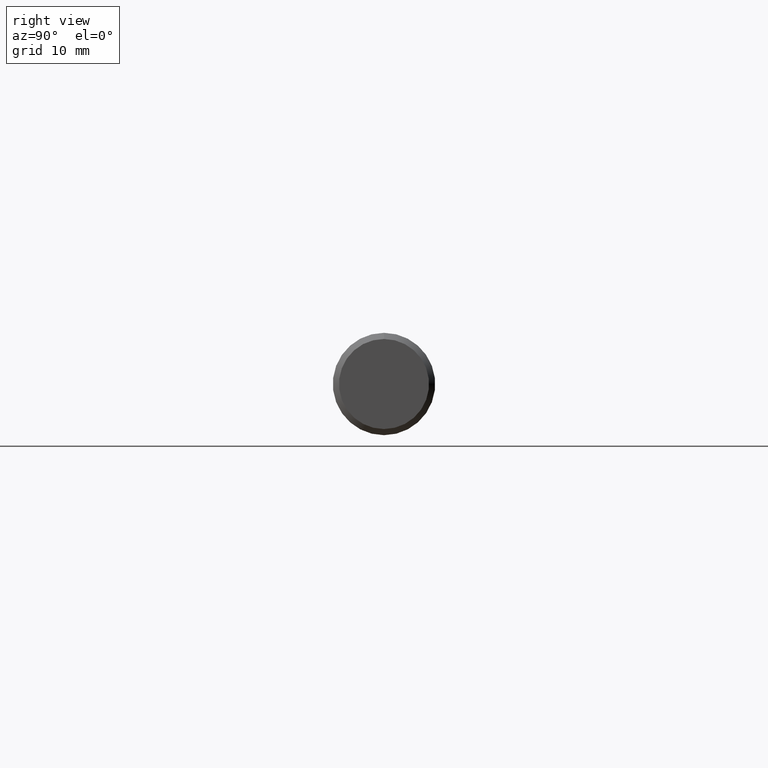
[diagram: clean part render]
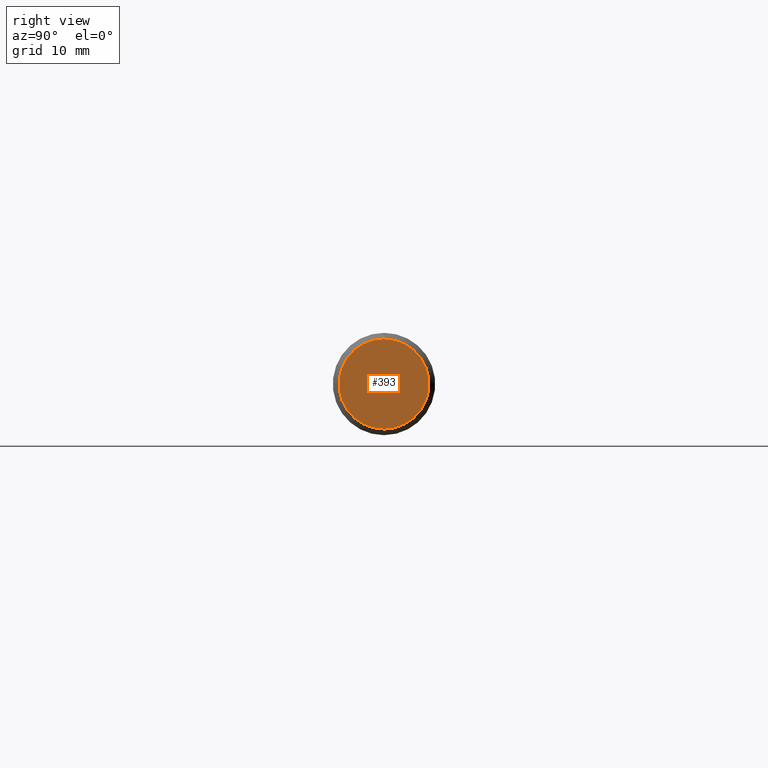
[diagram: same view with one face highlighted and labeled with its STEP entity id]
A machine part, right view. The second image highlights one B-rep face of the part: STEP entity #393.
In plain terms, the highlighted planar face has unit normal (1, 0, 0).
Its self-contained STEP definition (entity closure, byte-faithful):
#2 = EDGE_CURVE ( 'NONE', #816, #46, #442, .T. ) ;
#3 = DIRECTION ( 'NONE',  ( 1.000000000000000000, 0.0000000000000000000, 0.0000000000000000000 ) ) ;
#15 = PLANE ( 'NONE',  #2709 ) ;
#46 = VERTEX_POINT ( 'NONE', #2469 ) ;
#194 = CARTESIAN_POINT ( 'NONE',  ( 2.524999999999999911, 0.0000000000000000000, 0.0000000000000000000 ) ) ;
#393 = ADVANCED_FACE ( 'NONE', ( #810 ), #15, .T. ) ;
#442 = CIRCLE ( 'NONE', #1598, 0.2198500000000003785 ) ;
#449 = DIRECTION ( 'NONE',  ( 1.000000000000000000, 0.0000000000000000000, 0.0000000000000000000 ) ) ;
#474 = ORIENTED_EDGE ( 'NONE', *, *, #675, .T. ) ;
#601 = CIRCLE ( 'NONE', #2241, 0.2198500000000003785 ) ;
#675 = EDGE_CURVE ( 'NONE', #46, #816, #601, .T. ) ;
#798 = DIRECTION ( 'NONE',  ( 0.0000000000000000000, 0.0000000000000000000, -1.000000000000000000 ) ) ;
#810 = FACE_OUTER_BOUND ( 'NONE', #1992, .T. ) ;
#816 = VERTEX_POINT ( 'NONE', #1515 ) ;
#1009 = DIRECTION ( 'NONE',  ( 1.000000000000000000, 0.0000000000000000000, 0.0000000000000000000 ) ) ;
#1295 = DIRECTION ( 'NONE',  ( 0.0000000000000000000, 0.0000000000000000000, -1.000000000000000000 ) ) ;
#1515 = CARTESIAN_POINT ( 'NONE',  ( 2.524999999999999911, 0.0000000000000000000, 0.2198500000000003785 ) ) ;
#1598 = AXIS2_PLACEMENT_3D ( 'NONE', #194, #3, #798 ) ;
#1695 = CARTESIAN_POINT ( 'NONE',  ( 2.524999999999999911, 0.0000000000000000000, 0.0000000000000000000 ) ) ;
#1992 = EDGE_LOOP ( 'NONE', ( #2864, #474 ) ) ;
#2241 = AXIS2_PLACEMENT_3D ( 'NONE', #1695, #449, #3190 ) ;
#2469 = CARTESIAN_POINT ( 'NONE',  ( 2.524999999999999911, 2.876083007797561205E-17, -0.2198500000000003785 ) ) ;
#2709 = AXIS2_PLACEMENT_3D ( 'NONE', #2816, #1009, #1295 ) ;
#2816 = CARTESIAN_POINT ( 'NONE',  ( 2.524999999999999911, -0.2498499999999999888, 0.0000000000000000000 ) ) ;
#2864 = ORIENTED_EDGE ( 'NONE', *, *, #2, .T. ) ;
#3190 = DIRECTION ( 'NONE',  ( 0.0000000000000000000, 0.0000000000000000000, -1.000000000000000000 ) ) ;